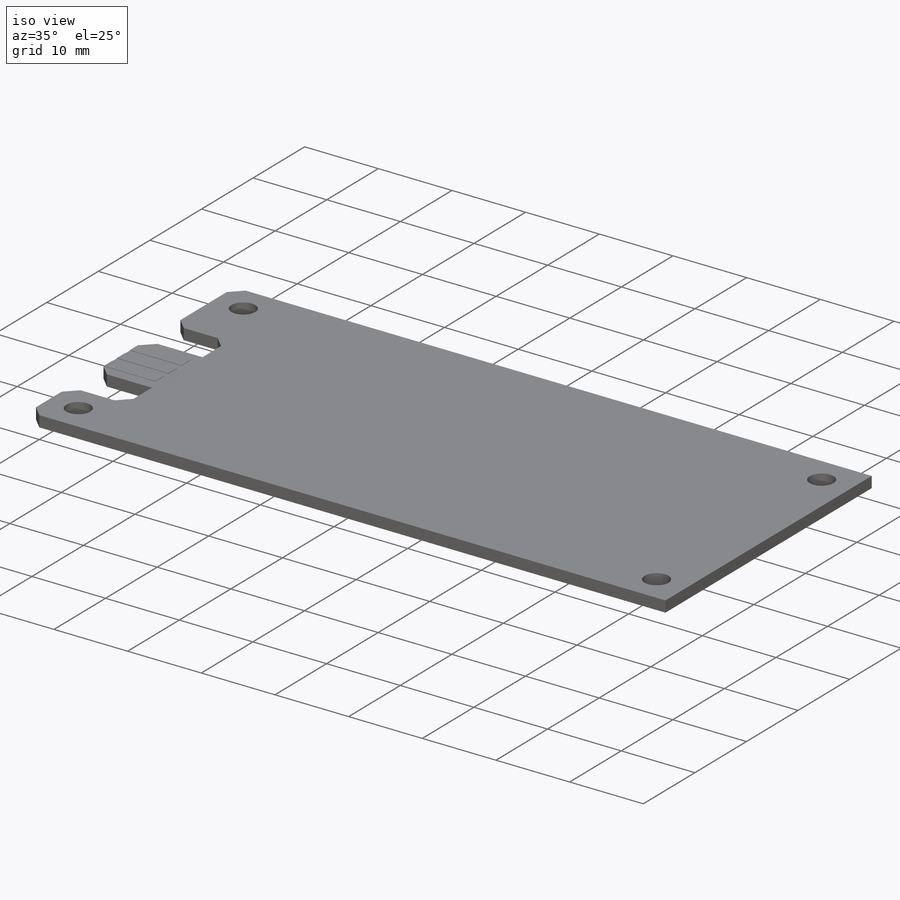
[diagram: iso view]
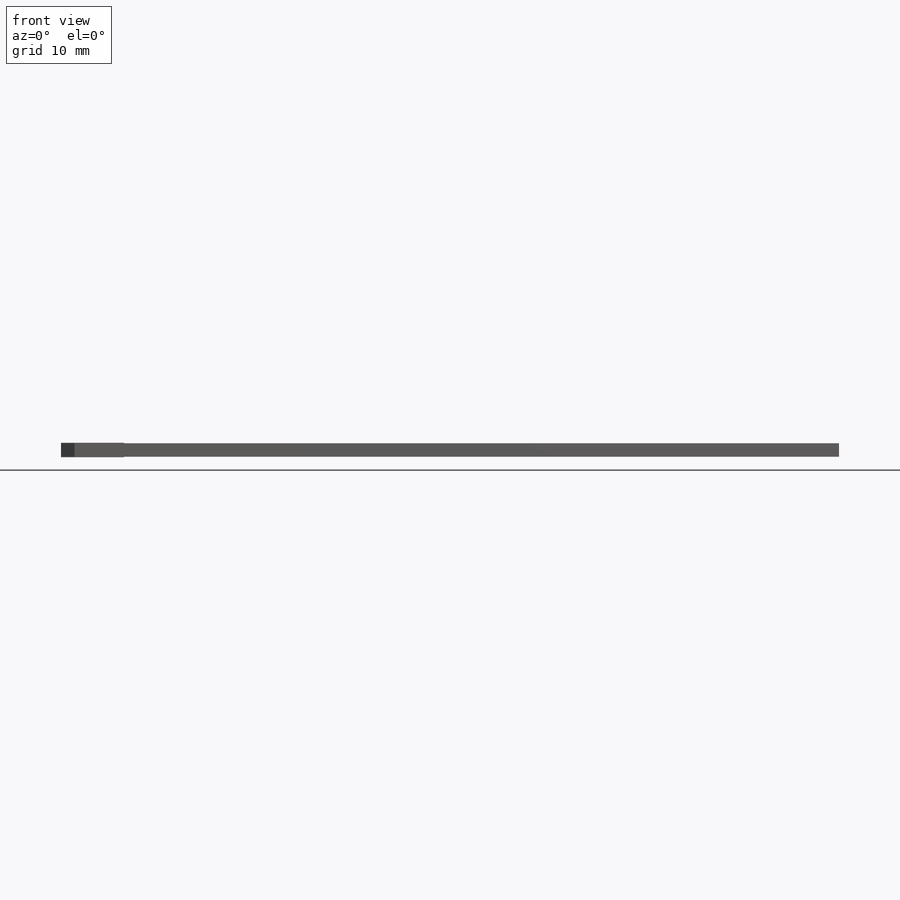
[diagram: front view]
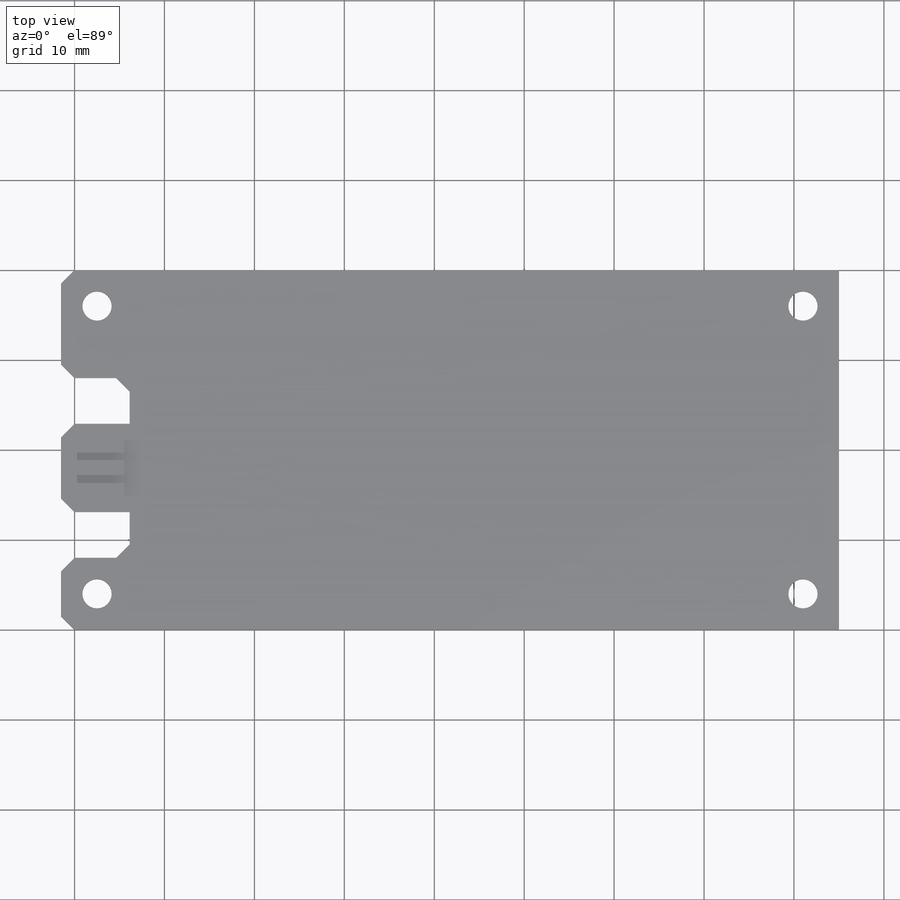
[diagram: top view]
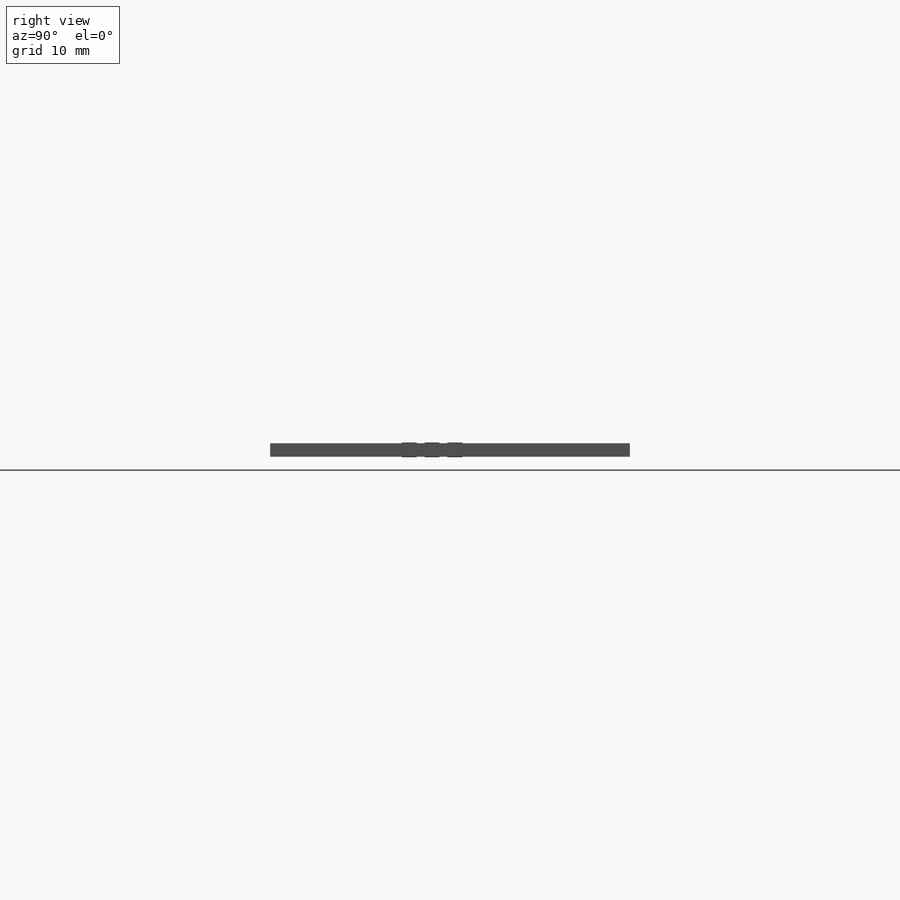
[diagram: right view]
SOLIDWORKS PART (.sldprt)
format: sldprt  version: not decoded by parser v0  size: 547,840 bytes
history: native  units: mm
features: sketch x5, extrude x2, cut_extrude x2, material x1, chamfer x1 (+12 scaffold rows collapsed)
feature tree (23):
  scaffold x12  (default folders/planes/origin — collapsed)
  material  "Material <not specified>"
  sketch  "Sketch1"  dims[c1.D1=45.0mm c1.D2=90.0mm c1.D3=45.0mm c2.D1=20.0mm c2.D4=20.0mm c2.D2=41.5mm]
  extrude  "Boss-Extrude1"  Depth=1.5mm
  sketch  "Sketch2"  dims[c1.D1=9.8044mm c1.D2=5.0mm c1.D3=5.0mm c1.D4=7.62mm c2.D2=20.0mm c2.D3=2.0mm]
  cut_extrude  "Cut-Extrude1"  [1 undecoded]
  chamfer  "Chamfer2"  Distance=1.5mm Angle=45deg
  sketch  "Sketch4"  dims[c1.D1=3.25mm c1.D2=6.35mm c1.D3=4.0mm c1.D4=4.0mm c1.D5=4.0mm c1.D6=4.0mm c2.D3=16.0mm c2.D4=16.0mm c2.D5=37.5mm c2.D6=~37.678734mm c3.D5=37.5mm c3.D6=41.0mm]
  cut_extrude  "Cut-Extrude2"  [1 undecoded]
  sketch  "Sketch5"  dims[c1.D1=1.0mm c1.D2=15.0mm c1.D3=15.0mm c2.D1=10.6mm c2.D2=2.6mm c2.D3=18.0mm c2.D4=10.25mm c2.D5=2.6mm c2.D6=7.4mm c3.D6=45.0deg c3.D7=12.0mm c3.D8=4.0mm c3.D9=2.25mm]
  sketch  "Sketch3"  dims[D1=2.54mm D2=7.0mm D3=1.651mm]
  extrude  "Boss-Extrude2"  Depth=0.05mm
decode coverage: 8 of 10 modeling features carry decoded parameters
note: ~ marks probable driven/reference dimensions
note: 2 parameter values undecoded
note: suppression state not decoded; provenance and decode notes live in map.json
